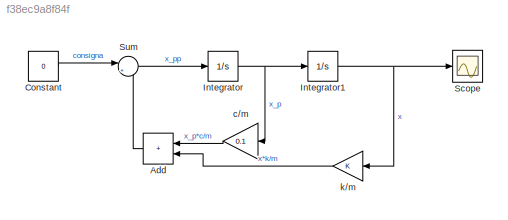
MODEL slx_f38ec9a8f84f
KIND model
CONFIG AbsTol = auto
CONFIG EnableMultiTasking = off
CONFIG FixedStep = 0.1
CONFIG MaxStep = auto
CONFIG MinStep = auto
CONFIG RelTol = 1e-3
CONFIG SampleTimeConstraint = Unconstrained
CONFIG SolverName = ode4
CONFIG StartTime = 0.0
CONFIG StopTime = 100
BLOCK [Sum] Add
  IconShape = rectangular
  NameLocation = top
BLOCK [Constant] Constant
  Value = 0
BLOCK [Integrator] Integrator
BLOCK [Integrator] Integrator1
  InitialCondition = 1
BLOCK [Scope] Scope
  Floating = off
  NumInputPorts = 1
  ScopeSpecificationString = Simulink.scopes.TimeScopeBlockCfg('CurrentConfiguration', extmgr.ConfigurationSet(extmgr.Configuration('Core','General UI',true),extmgr.Configuration('Core','Source UI',true),extmgr.Configuration('Sources','WiredSimulink',true),extmgr.Configuration('Visuals','Time Domain',true,'SerializedDisplays',{struct('MinYLimReal','-1.08528','MaxYLimReal','1.2317','YLabelReal','','MinYLimMag','0.00000','MaxYL...<+1348ch>
BLOCK [Sum] Sum
  Inputs = |+-
BLOCK [Gain] c//m
  Gain = 0.1
  NameLocation = top
BLOCK [Gain] k//m
  NameLocation = top
LINE Add:1 -> Sum:2
LINE Constant:1 -> Sum:1
NET Integrator1:1 -> Scope:1, k//m:1
NET Integrator:1 -> Integrator1:1, c//m:1
LINE Sum:1 -> Integrator:1
LINE c//m:1 -> Add:1
LINE k//m:1 -> Add:2
note: NET lines group one-source signal fan-out (src -> all destinations, sorted); 1:1 wires keep LINE
